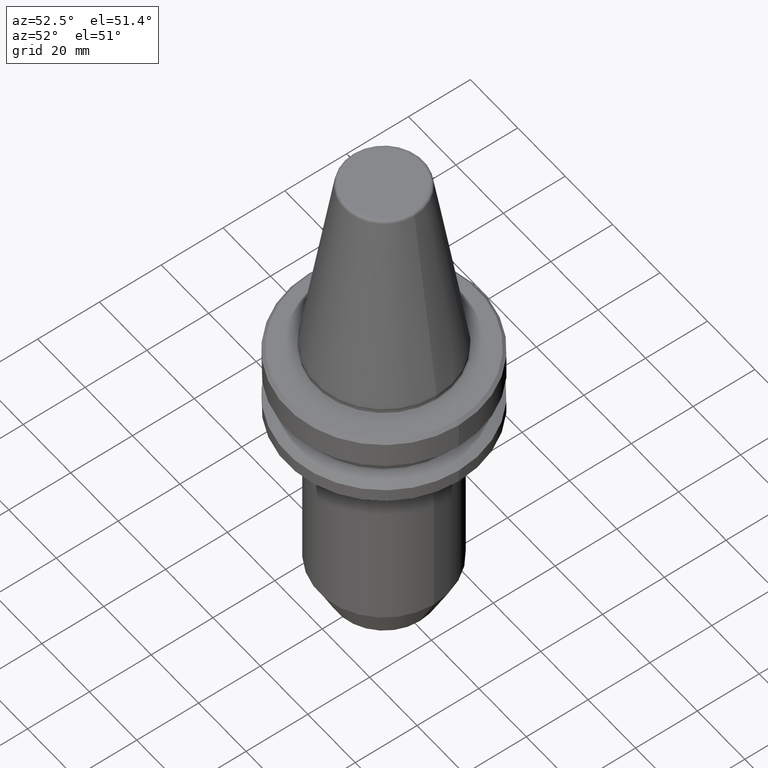
[diagram: clean part render]
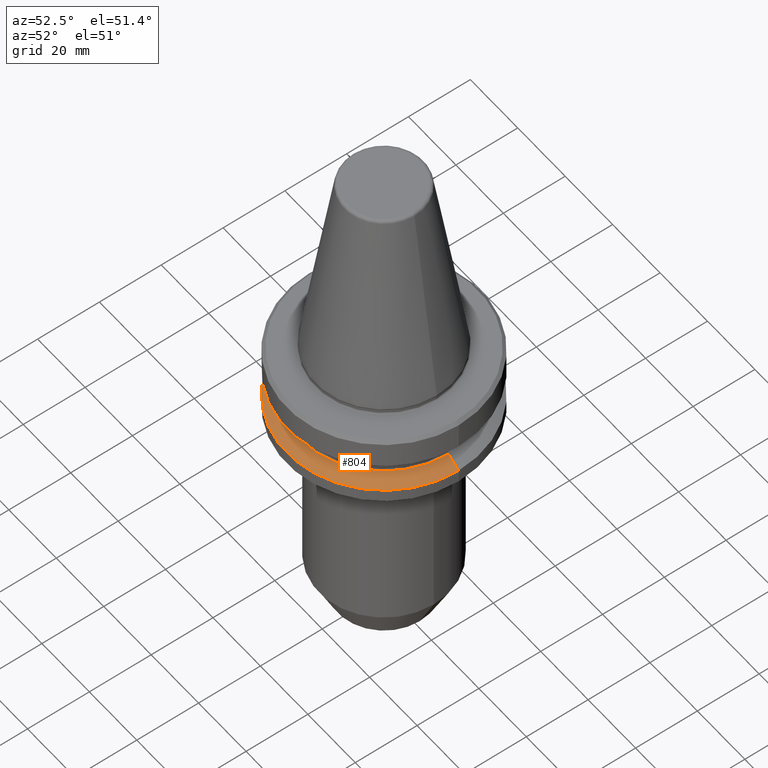
[diagram: same view with one face highlighted and labeled with its STEP entity id]
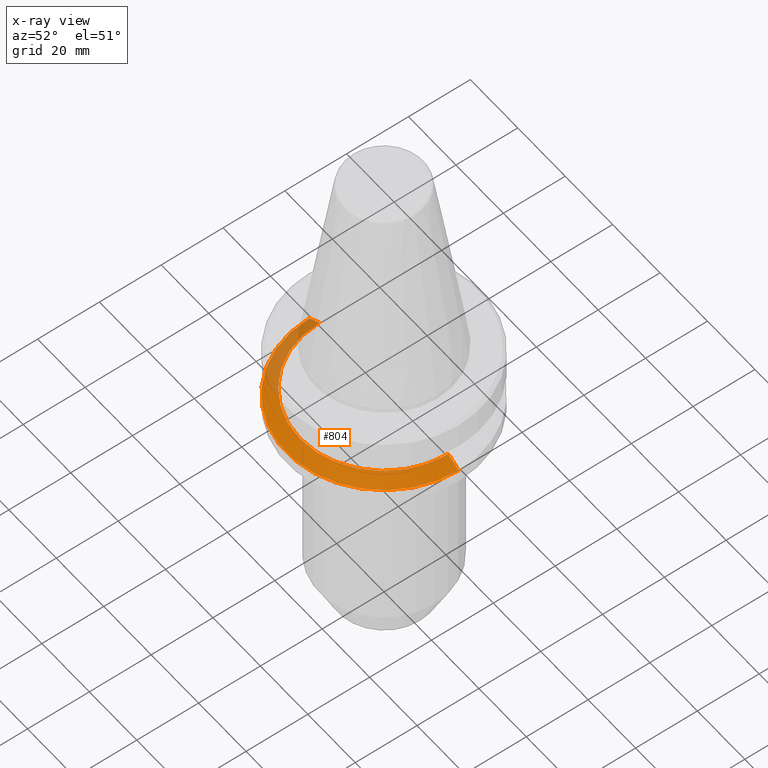
[diagram: x-ray of the same camera — body ghosted, the highlighted face saturated]
A machine part, auxiliary view. The second image highlights one B-rep face of the part: STEP entity #804.
The next image is the same camera in x-ray: the body ghosted, the highlighted face saturated — about 19% of this face is hidden behind the body in this view.
In plain terms, the highlighted conical surface has half-angle 60 deg.
Its self-contained STEP definition (entity closure, byte-faithful):
#8 = EDGE_CURVE ( 'NONE', #612, #24, #244, .T. ) ;
#24 = VERTEX_POINT ( 'NONE', #265 ) ;
#65 = DIRECTION ( 'NONE',  ( 0.0000000000000000000, 0.0000000000000000000, -1.000000000000000000 ) ) ;
#100 = CARTESIAN_POINT ( 'NONE',  ( 31.50000000000041600, 3.857637417314213200E-015, -21.60014200642024200 ) ) ;
#105 = ORIENTED_EDGE ( 'NONE', *, *, #8, .T. ) ;
#117 = CARTESIAN_POINT ( 'NONE',  ( -27.16962701892200400, 0.0000000000000000000, -19.10000000010314400 ) ) ;
#145 = DIRECTION ( 'NONE',  ( 1.000000000000000000, 0.0000000000000000000, 0.0000000000000000000 ) ) ;
#146 = DIRECTION ( 'NONE',  ( 1.000000000000000000, 0.0000000000000000000, 0.0000000000000000000 ) ) ;
#174 = CARTESIAN_POINT ( 'NONE',  ( -31.50000000000041600, 0.0000000000000000000, -21.60014200642024200 ) ) ;
#209 = AXIS2_PLACEMENT_3D ( 'NONE', #247, #633, #145 ) ;
#241 = VECTOR ( 'NONE', #909, 1000.000000000000000 ) ;
#244 = CIRCLE ( 'NONE', #209, 31.50000000000041600 ) ;
#247 = CARTESIAN_POINT ( 'NONE',  ( 0.0000000000000000000, 0.0000000000000000000, -21.60014200642024200 ) ) ;
#262 = CARTESIAN_POINT ( 'NONE',  ( 27.16962701892200400, 3.592478546794620500E-015, -19.10000000010314400 ) ) ;
#265 = CARTESIAN_POINT ( 'NONE',  ( 31.50000000000041600, 0.0000000000000000000, -21.60014200642024200 ) ) ;
#353 = DIRECTION ( 'NONE',  ( -1.000000000000000000, 0.0000000000000000000, 0.0000000000000000000 ) ) ;
#394 = VERTEX_POINT ( 'NONE', #262 ) ;
#395 = ORIENTED_EDGE ( 'NONE', *, *, #419, .F. ) ;
#419 = EDGE_CURVE ( 'NONE', #394, #24, #1022, .T. ) ;
#427 = CARTESIAN_POINT ( 'NONE',  ( 0.0000000000000000000, 0.0000000000000000000, -19.10000000010314400 ) ) ;
#448 = ORIENTED_EDGE ( 'NONE', *, *, #914, .T. ) ;
#488 = LINE ( 'NONE', #174, #241 ) ;
#538 = AXIS2_PLACEMENT_3D ( 'NONE', #987, #65, #353 ) ;
#556 = AXIS2_PLACEMENT_3D ( 'NONE', #427, #811, #146 ) ;
#606 = EDGE_CURVE ( 'NONE', #780, #394, #905, .T. ) ;
#612 = VERTEX_POINT ( 'NONE', #838 ) ;
#633 = DIRECTION ( 'NONE',  ( -0.0000000000000000000, -0.0000000000000000000, 1.000000000000000000 ) ) ;
#693 = FACE_OUTER_BOUND ( 'NONE', #806, .T. ) ;
#780 = VERTEX_POINT ( 'NONE', #117 ) ;
#782 = DIRECTION ( 'NONE',  ( 0.8660254037844392600, 1.060575238724907700E-016, -0.4999999999999989500 ) ) ;
#804 = ADVANCED_FACE ( 'NONE', ( #693 ), #880, .T. ) ;
#806 = EDGE_LOOP ( 'NONE', ( #395, #986, #448, #105 ) ) ;
#807 = VECTOR ( 'NONE', #782, 1000.000000000000000 ) ;
#811 = DIRECTION ( 'NONE',  ( -0.0000000000000000000, -0.0000000000000000000, 1.000000000000000000 ) ) ;
#838 = CARTESIAN_POINT ( 'NONE',  ( -31.50000000000041600, 3.857637417314213200E-015, -21.60014200642024200 ) ) ;
#880 = CONICAL_SURFACE ( 'NONE', #538, 31.50000000000041600, 1.047197551196599000 ) ;
#905 = CIRCLE ( 'NONE', #556, 27.16962701892200400 ) ;
#909 = DIRECTION ( 'NONE',  ( -0.8660254037844392600, 0.0000000000000000000, -0.4999999999999989500 ) ) ;
#914 = EDGE_CURVE ( 'NONE', #780, #612, #488, .T. ) ;
#986 = ORIENTED_EDGE ( 'NONE', *, *, #606, .F. ) ;
#987 = CARTESIAN_POINT ( 'NONE',  ( 0.0000000000000000000, 0.0000000000000000000, -21.60014200642024200 ) ) ;
#1022 = LINE ( 'NONE', #100, #807 ) ;